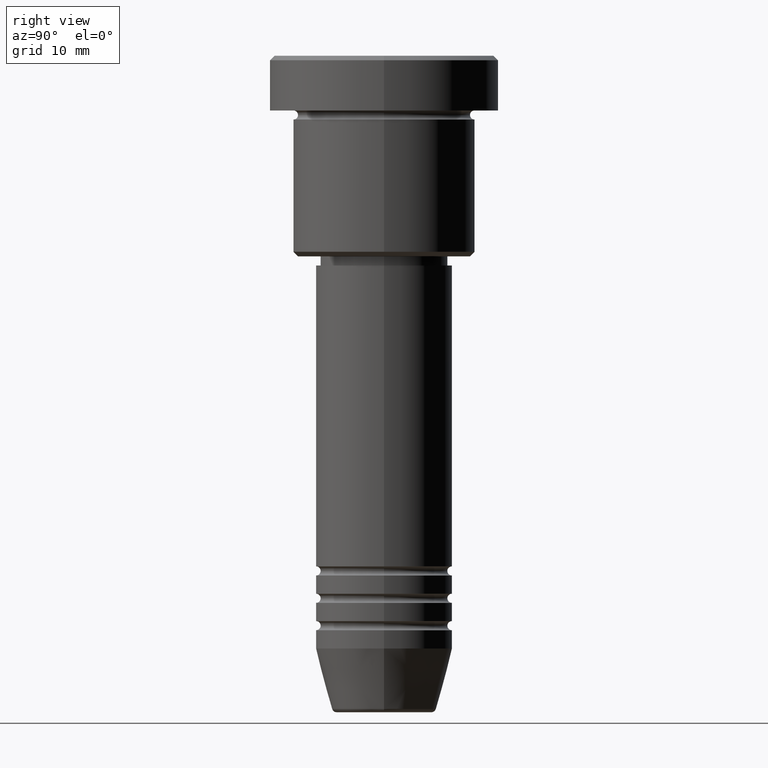
[diagram: clean part render]
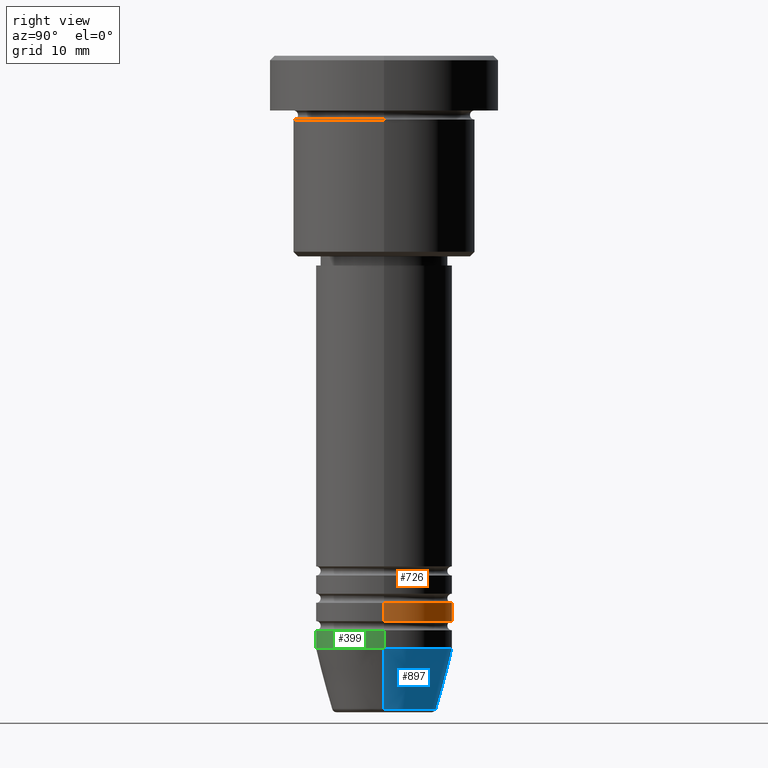
[diagram: same view with three faces highlighted in distinct colors, each labeled with its STEP entity id]
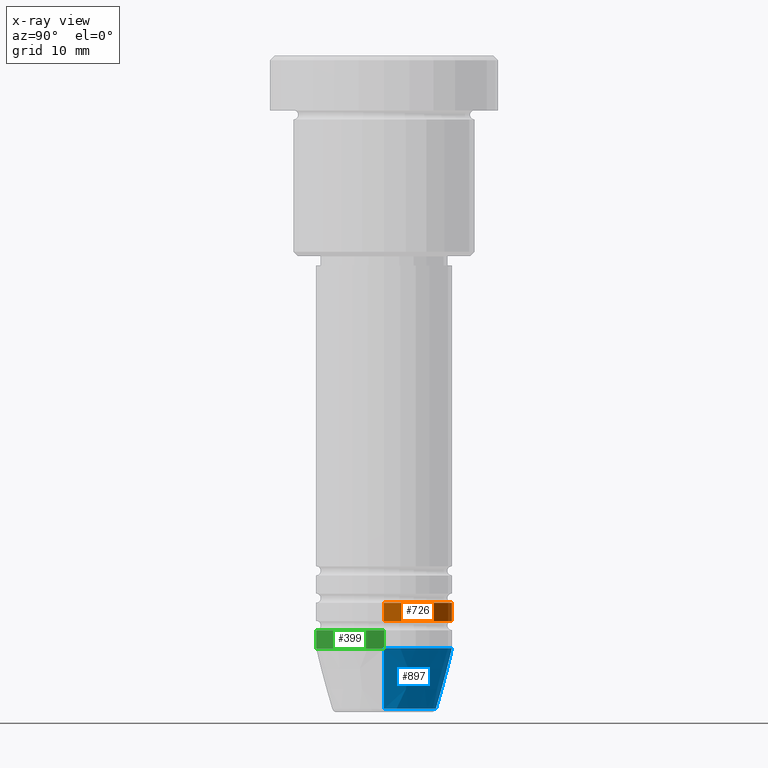
[diagram: x-ray of the same camera — body ghosted, the three highlighted faces saturated]
A machine part, right view with three faces highlighted in distinct colors.
The next image is the same camera in x-ray (body ghosted, the three faces saturated) — at least one of them is partly hidden behind the body in this view.
Their STEP definitions:

[orange] entity #726 — the highlighted cylindrical surface (partial cylindrical patch) has radius 7.5 mm, axis along (-0, -0, 1).
#79 = CARTESIAN_POINT ( 'NONE',  ( 7.500000000000000000, 0.000000000000000000, 0.000000000000000000 ) ) ;
#82 = EDGE_CURVE ( 'NONE', #1176, #836, #1019, .T. ) ;
#88 = AXIS2_PLACEMENT_3D ( 'NONE', #341, #705, #253 ) ;
#112 = CARTESIAN_POINT ( 'NONE',  ( 7.500000000000000000, 0.000000000000000000, -61.99999999999998579 ) ) ;
#150 = FACE_OUTER_BOUND ( 'NONE', #950, .T. ) ;
#204 = EDGE_CURVE ( 'NONE', #881, #1176, #1013, .T. ) ;
#232 = CARTESIAN_POINT ( 'NONE',  ( 0.000000000000000000, 0.000000000000000000, -61.99999999999998579 ) ) ;
#248 = CYLINDRICAL_SURFACE ( 'NONE', #88, 7.500000000000000000 ) ;
#253 = DIRECTION ( 'NONE',  ( 1.000000000000000000, 0.000000000000000000, 0.000000000000000000 ) ) ;
#341 = CARTESIAN_POINT ( 'NONE',  ( 0.000000000000000000, 0.000000000000000000, 0.000000000000000000 ) ) ;
#347 = EDGE_CURVE ( 'NONE', #881, #627, #1174, .T. ) ;
#433 = CIRCLE ( 'NONE', #1124, 7.500000000000000000 ) ;
#463 = ORIENTED_EDGE ( 'NONE', *, *, #347, .F. ) ;
#469 = CARTESIAN_POINT ( 'NONE',  ( -7.500000000000000000, 9.184850993605147944E-16, -59.99999999999998579 ) ) ;
#502 = DIRECTION ( 'NONE',  ( 1.000000000000000000, 0.000000000000000000, 0.000000000000000000 ) ) ;
#579 = ORIENTED_EDGE ( 'NONE', *, *, #82, .T. ) ;
#592 = DIRECTION ( 'NONE',  ( -0.000000000000000000, -0.000000000000000000, 1.000000000000000000 ) ) ;
#627 = VERTEX_POINT ( 'NONE', #807 ) ;
#633 = VECTOR ( 'NONE', #943, 1000.000000000000000 ) ;
#646 = ORIENTED_EDGE ( 'NONE', *, *, #996, .F. ) ;
#693 = CARTESIAN_POINT ( 'NONE',  ( -7.500000000000000000, 9.184850993605147944E-16, -61.99999999999998579 ) ) ;
#705 = DIRECTION ( 'NONE',  ( -0.000000000000000000, -0.000000000000000000, 1.000000000000000000 ) ) ;
#726 = ADVANCED_FACE ( 'NONE', ( #150 ), #248, .T. ) ;
#782 = DIRECTION ( 'NONE',  ( 1.000000000000000000, 0.000000000000000000, 0.000000000000000000 ) ) ;
#803 = AXIS2_PLACEMENT_3D ( 'NONE', #232, #959, #502 ) ;
#807 = CARTESIAN_POINT ( 'NONE',  ( 7.500000000000000000, 0.000000000000000000, -59.99999999999998579 ) ) ;
#836 = VERTEX_POINT ( 'NONE', #469 ) ;
#881 = VERTEX_POINT ( 'NONE', #112 ) ;
#943 = DIRECTION ( 'NONE',  ( -0.000000000000000000, -0.000000000000000000, 1.000000000000000000 ) ) ;
#946 = CARTESIAN_POINT ( 'NONE',  ( 0.000000000000000000, 0.000000000000000000, -59.99999999999998579 ) ) ;
#950 = EDGE_LOOP ( 'NONE', ( #1071, #579, #646, #463 ) ) ;
#959 = DIRECTION ( 'NONE',  ( -0.000000000000000000, -0.000000000000000000, 1.000000000000000000 ) ) ;
#996 = EDGE_CURVE ( 'NONE', #627, #836, #433, .T. ) ;
#1013 = CIRCLE ( 'NONE', #803, 7.500000000000000000 ) ;
#1019 = LINE ( 'NONE', #1137, #1094 ) ;
#1031 = DIRECTION ( 'NONE',  ( -0.000000000000000000, -0.000000000000000000, 1.000000000000000000 ) ) ;
#1071 = ORIENTED_EDGE ( 'NONE', *, *, #204, .T. ) ;
#1094 = VECTOR ( 'NONE', #1031, 1000.000000000000000 ) ;
#1124 = AXIS2_PLACEMENT_3D ( 'NONE', #946, #592, #782 ) ;
#1137 = CARTESIAN_POINT ( 'NONE',  ( -7.500000000000000000, 9.184850993605147944E-16, 0.000000000000000000 ) ) ;
#1174 = LINE ( 'NONE', #79, #633 ) ;
#1176 = VERTEX_POINT ( 'NONE', #693 ) ;

[blue] entity #897 — the highlighted conical surface has half-angle 15 deg.
#12 = CONICAL_SURFACE ( 'NONE', #795, 7.500000000000000000, 0.2617993877991500740 ) ;
#21 = AXIS2_PLACEMENT_3D ( 'NONE', #296, #105, #289 ) ;
#28 = VERTEX_POINT ( 'NONE', #102 ) ;
#73 = CARTESIAN_POINT ( 'NONE',  ( 7.500000000000000000, 0.000000000000000000, -65.00000000000000000 ) ) ;
#99 = FACE_OUTER_BOUND ( 'NONE', #809, .T. ) ;
#102 = CARTESIAN_POINT ( 'NONE',  ( 5.723655072137191269, 0.000000000000000000, -71.62940952255127058 ) ) ;
#105 = DIRECTION ( 'NONE',  ( -0.000000000000000000, -0.000000000000000000, 1.000000000000000000 ) ) ;
#109 = CARTESIAN_POINT ( 'NONE',  ( -7.500000000000000000, 9.184850993605147944E-16, -65.00000000000000000 ) ) ;
#110 = VERTEX_POINT ( 'NONE', #109 ) ;
#170 = CARTESIAN_POINT ( 'NONE',  ( 7.500000000000000000, 0.000000000000000000, -65.00000000000000000 ) ) ;
#222 = LINE ( 'NONE', #586, #682 ) ;
#230 = DIRECTION ( 'NONE',  ( -0.2588190451025213501, 3.169619151431772337E-17, 0.9659258262890680902 ) ) ;
#281 = EDGE_CURVE ( 'NONE', #28, #338, #880, .T. ) ;
#289 = DIRECTION ( 'NONE',  ( 1.000000000000000000, 0.000000000000000000, 0.000000000000000000 ) ) ;
#296 = CARTESIAN_POINT ( 'NONE',  ( 0.000000000000000000, 0.000000000000000000, -65.00000000000000000 ) ) ;
#336 = EDGE_CURVE ( 'NONE', #28, #380, #594, .T. ) ;
#338 = VERTEX_POINT ( 'NONE', #170 ) ;
#353 = DIRECTION ( 'NONE',  ( -0.000000000000000000, -0.000000000000000000, 1.000000000000000000 ) ) ;
#377 = CARTESIAN_POINT ( 'NONE',  ( 0.000000000000000000, 0.000000000000000000, -71.62940952255127058 ) ) ;
#380 = VERTEX_POINT ( 'NONE', #1024 ) ;
#388 = DIRECTION ( 'NONE',  ( -0.000000000000000000, -0.000000000000000000, 1.000000000000000000 ) ) ;
#389 = EDGE_CURVE ( 'NONE', #338, #110, #749, .T. ) ;
#441 = DIRECTION ( 'NONE',  ( 1.000000000000000000, 0.000000000000000000, 0.000000000000000000 ) ) ;
#457 = ORIENTED_EDGE ( 'NONE', *, *, #281, .F. ) ;
#518 = ORIENTED_EDGE ( 'NONE', *, *, #389, .F. ) ;
#575 = AXIS2_PLACEMENT_3D ( 'NONE', #377, #353, #441 ) ;
#586 = CARTESIAN_POINT ( 'NONE',  ( -7.500000000000000000, 9.184850993605147944E-16, -65.00000000000000000 ) ) ;
#589 = EDGE_CURVE ( 'NONE', #380, #110, #222, .T. ) ;
#594 = CIRCLE ( 'NONE', #575, 5.723655072137191269 ) ;
#647 = CARTESIAN_POINT ( 'NONE',  ( 0.000000000000000000, 0.000000000000000000, -65.00000000000000000 ) ) ;
#682 = VECTOR ( 'NONE', #230, 1000.000000000000000 ) ;
#727 = VECTOR ( 'NONE', #978, 1000.000000000000000 ) ;
#749 = CIRCLE ( 'NONE', #21, 7.500000000000000000 ) ;
#795 = AXIS2_PLACEMENT_3D ( 'NONE', #647, #388, #1119 ) ;
#809 = EDGE_LOOP ( 'NONE', ( #1009, #883, #518, #457 ) ) ;
#880 = LINE ( 'NONE', #73, #727 ) ;
#883 = ORIENTED_EDGE ( 'NONE', *, *, #589, .T. ) ;
#897 = ADVANCED_FACE ( 'NONE', ( #99 ), #12, .T. ) ;
#978 = DIRECTION ( 'NONE',  ( 0.2588190451025213501, 0.000000000000000000, 0.9659258262890680902 ) ) ;
#1009 = ORIENTED_EDGE ( 'NONE', *, *, #336, .T. ) ;
#1024 = CARTESIAN_POINT ( 'NONE',  ( -5.723655072137190380, 8.097153428560735915E-16, -71.62940952255127058 ) ) ;
#1119 = DIRECTION ( 'NONE',  ( 1.000000000000000000, 0.000000000000000000, 0.000000000000000000 ) ) ;

[green] entity #399 — the highlighted cylindrical surface (partial cylindrical patch) has radius 7.5 mm, axis along (-0, -0, 1).
#3 = VERTEX_POINT ( 'NONE', #91 ) ;
#41 = DIRECTION ( 'NONE',  ( -0.000000000000000000, -0.000000000000000000, 1.000000000000000000 ) ) ;
#91 = CARTESIAN_POINT ( 'NONE',  ( -7.500000000000000000, 9.184850993605147944E-16, -63.00000000000000000 ) ) ;
#100 = DIRECTION ( 'NONE',  ( -0.000000000000000000, -0.000000000000000000, 1.000000000000000000 ) ) ;
#109 = CARTESIAN_POINT ( 'NONE',  ( -7.500000000000000000, 9.184850993605147944E-16, -65.00000000000000000 ) ) ;
#110 = VERTEX_POINT ( 'NONE', #109 ) ;
#170 = CARTESIAN_POINT ( 'NONE',  ( 7.500000000000000000, 0.000000000000000000, -65.00000000000000000 ) ) ;
#180 = EDGE_CURVE ( 'NONE', #3, #1134, #325, .T. ) ;
#207 = FACE_OUTER_BOUND ( 'NONE', #799, .T. ) ;
#270 = ORIENTED_EDGE ( 'NONE', *, *, #935, .T. ) ;
#320 = DIRECTION ( 'NONE',  ( 1.000000000000000000, 0.000000000000000000, 0.000000000000000000 ) ) ;
#325 = CIRCLE ( 'NONE', #707, 7.500000000000000000 ) ;
#326 = EDGE_CURVE ( 'NONE', #110, #338, #1075, .T. ) ;
#330 = ORIENTED_EDGE ( 'NONE', *, *, #326, .T. ) ;
#338 = VERTEX_POINT ( 'NONE', #170 ) ;
#359 = EDGE_CURVE ( 'NONE', #110, #3, #808, .T. ) ;
#399 = ADVANCED_FACE ( 'NONE', ( #207 ), #830, .T. ) ;
#428 = CARTESIAN_POINT ( 'NONE',  ( 0.000000000000000000, 0.000000000000000000, -63.00000000000000000 ) ) ;
#465 = DIRECTION ( 'NONE',  ( 1.000000000000000000, 0.000000000000000000, 0.000000000000000000 ) ) ;
#536 = VECTOR ( 'NONE', #555, 1000.000000000000000 ) ;
#555 = DIRECTION ( 'NONE',  ( -0.000000000000000000, -0.000000000000000000, 1.000000000000000000 ) ) ;
#577 = DIRECTION ( 'NONE',  ( -0.000000000000000000, -0.000000000000000000, 1.000000000000000000 ) ) ;
#580 = LINE ( 'NONE', #846, #908 ) ;
#609 = CARTESIAN_POINT ( 'NONE',  ( 7.500000000000000000, 0.000000000000000000, -63.00000000000000000 ) ) ;
#657 = DIRECTION ( 'NONE',  ( 1.000000000000000000, 0.000000000000000000, 0.000000000000000000 ) ) ;
#707 = AXIS2_PLACEMENT_3D ( 'NONE', #428, #1058, #320 ) ;
#751 = CARTESIAN_POINT ( 'NONE',  ( -7.500000000000000000, 9.184850993605147944E-16, 0.000000000000000000 ) ) ;
#799 = EDGE_LOOP ( 'NONE', ( #934, #330, #270, #1021 ) ) ;
#808 = LINE ( 'NONE', #751, #536 ) ;
#830 = CYLINDRICAL_SURFACE ( 'NONE', #877, 7.500000000000000000 ) ;
#846 = CARTESIAN_POINT ( 'NONE',  ( 7.500000000000000000, 0.000000000000000000, 0.000000000000000000 ) ) ;
#877 = AXIS2_PLACEMENT_3D ( 'NONE', #922, #100, #657 ) ;
#896 = CARTESIAN_POINT ( 'NONE',  ( 0.000000000000000000, 0.000000000000000000, -65.00000000000000000 ) ) ;
#908 = VECTOR ( 'NONE', #41, 1000.000000000000000 ) ;
#922 = CARTESIAN_POINT ( 'NONE',  ( 0.000000000000000000, 0.000000000000000000, 0.000000000000000000 ) ) ;
#934 = ORIENTED_EDGE ( 'NONE', *, *, #359, .F. ) ;
#935 = EDGE_CURVE ( 'NONE', #338, #1134, #580, .T. ) ;
#1021 = ORIENTED_EDGE ( 'NONE', *, *, #180, .F. ) ;
#1058 = DIRECTION ( 'NONE',  ( -0.000000000000000000, -0.000000000000000000, 1.000000000000000000 ) ) ;
#1075 = CIRCLE ( 'NONE', #1111, 7.500000000000000000 ) ;
#1111 = AXIS2_PLACEMENT_3D ( 'NONE', #896, #577, #465 ) ;
#1134 = VERTEX_POINT ( 'NONE', #609 ) ;